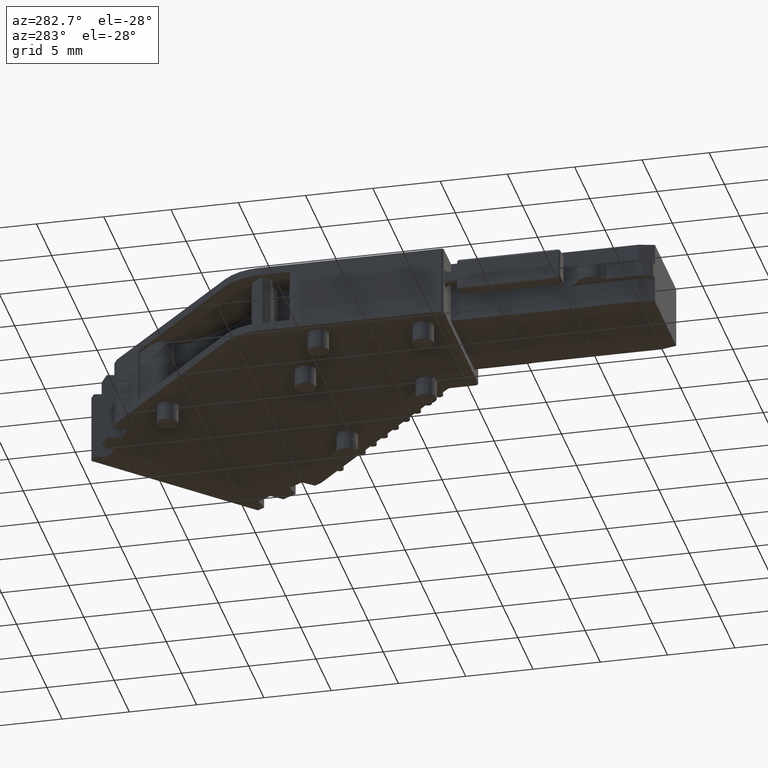
[diagram: clean part render]
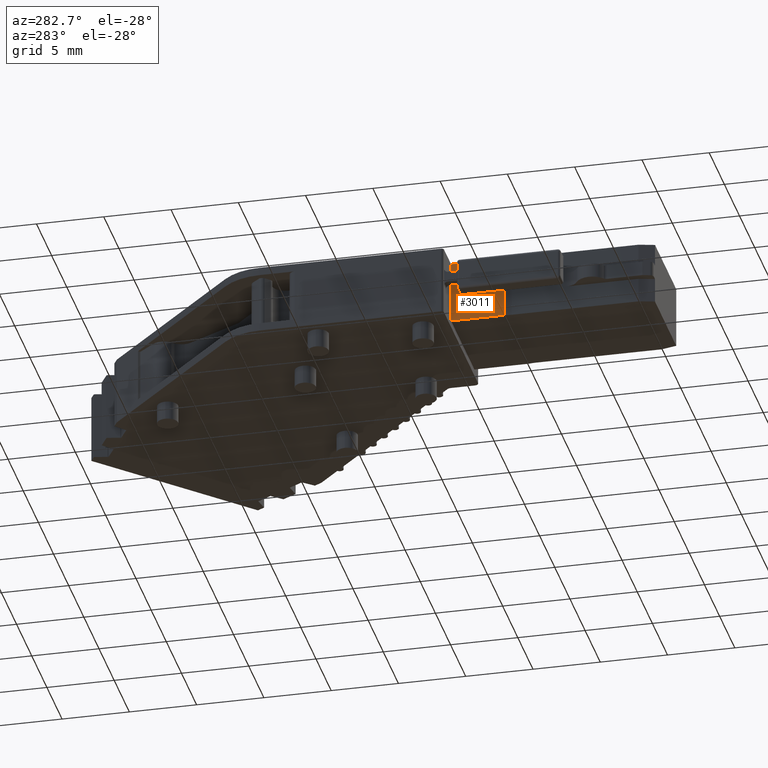
[diagram: same view with one face highlighted and labeled with its STEP entity id]
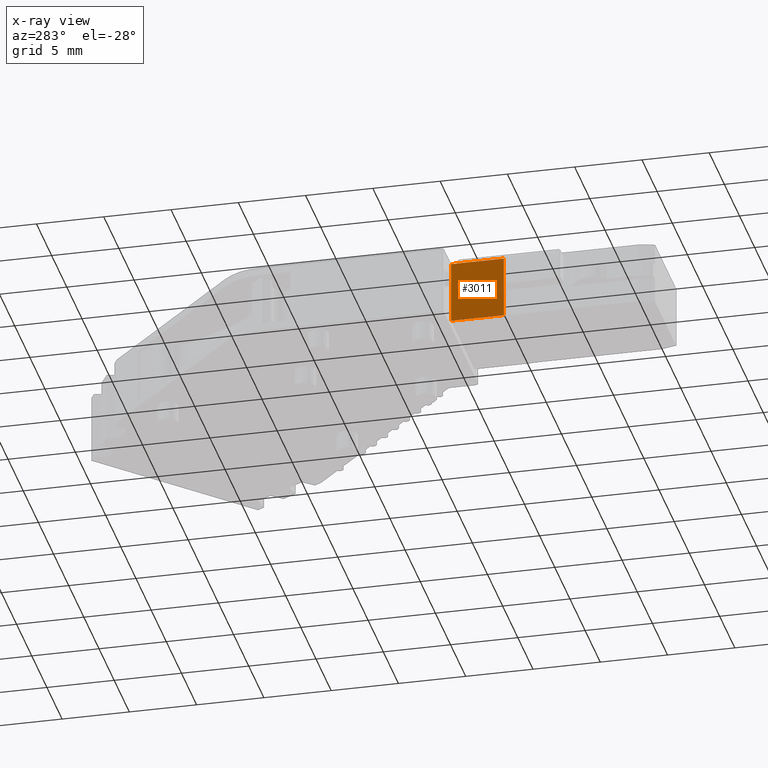
[diagram: x-ray of the same camera — body ghosted, the highlighted face saturated]
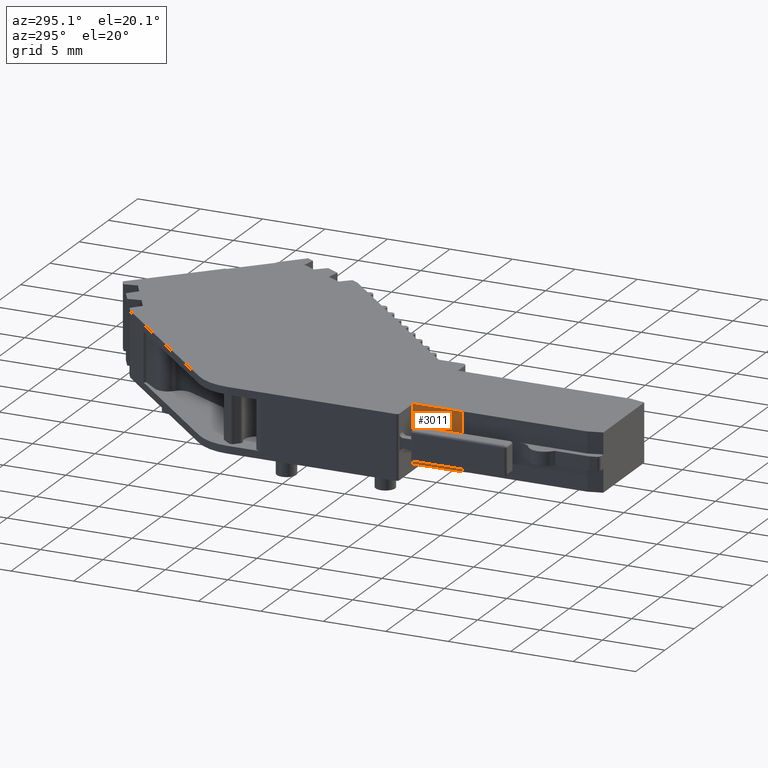
[diagram: same view with one face highlighted and labeled with its STEP entity id]
A machine part, auxiliary view. The second image highlights one B-rep face of the part: STEP entity #3011.
The next image is the same camera in x-ray: the body ghosted, the highlighted face saturated — about 0% of this face is hidden behind the body in this view.
A second angle (auxiliary view) of the same face is appended — the face is thin or edge-on in the first view.
In plain terms, the highlighted planar face has unit normal (-1, -0, 0).
Its self-contained STEP definition (entity closure, byte-faithful):
#207 = CARTESIAN_POINT ( 'NONE',  ( -3.846438410265570400, 11.15248975837830000, 0.5000000000000002200 ) ) ;
#411 = EDGE_CURVE ( 'NONE', #2591, #4702, #1422, .T. ) ;
#445 = LINE ( 'NONE', #5971, #4646 ) ;
#865 = CARTESIAN_POINT ( 'NONE',  ( -3.846438410265568700, 15.08098714324118100, 5.150000000000000400 ) ) ;
#1045 = PLANE ( 'NONE',  #5202 ) ;
#1065 = EDGE_CURVE ( 'NONE', #2385, #2591, #5059, .T. ) ;
#1379 = DIRECTION ( 'NONE',  ( 0.0000000000000000000, 0.0000000000000000000, 1.000000000000000000 ) ) ;
#1422 = LINE ( 'NONE', #2798, #2569 ) ;
#1625 = LINE ( 'NONE', #4680, #5354 ) ;
#1775 = DIRECTION ( 'NONE',  ( -0.0000000000000000000, -0.0000000000000000000, -1.000000000000000000 ) ) ;
#2264 = EDGE_CURVE ( 'NONE', #2410, #2385, #1625, .T. ) ;
#2385 = VERTEX_POINT ( 'NONE', #3780 ) ;
#2410 = VERTEX_POINT ( 'NONE', #865 ) ;
#2569 = VECTOR ( 'NONE', #1379, 1000.000000000000000 ) ;
#2591 = VERTEX_POINT ( 'NONE', #207 ) ;
#2798 = CARTESIAN_POINT ( 'NONE',  ( -3.846438410265568700, 11.15248975837826800, -3.800277769205023600 ) ) ;
#2803 = EDGE_LOOP ( 'NONE', ( #2985, #6077, #4435, #5413 ) ) ;
#2985 = ORIENTED_EDGE ( 'NONE', *, *, #2264, .T. ) ;
#3011 = ADVANCED_FACE ( 'NONE', ( #4266 ), #1045, .T. ) ;
#3405 = DIRECTION ( 'NONE',  ( 1.103935745675566000E-016, -1.000000000000000000, 0.0000000000000000000 ) ) ;
#3456 = VECTOR ( 'NONE', #3405, 1000.000000000000000 ) ;
#3704 = EDGE_CURVE ( 'NONE', #2410, #4702, #445, .T. ) ;
#3780 = CARTESIAN_POINT ( 'NONE',  ( -3.846438410265569100, 15.08098714324118100, 0.5000000000000003300 ) ) ;
#4266 = FACE_OUTER_BOUND ( 'NONE', #2803, .T. ) ;
#4419 = CARTESIAN_POINT ( 'NONE',  ( -3.846438410265570000, 11.15248975837822200, 5.150000000000001200 ) ) ;
#4435 = ORIENTED_EDGE ( 'NONE', *, *, #411, .T. ) ;
#4514 = CARTESIAN_POINT ( 'NONE',  ( -3.846438410265569100, 15.08098714324013500, -3.800277769205023600 ) ) ;
#4646 = VECTOR ( 'NONE', #5001, 1000.000000000000000 ) ;
#4680 = CARTESIAN_POINT ( 'NONE',  ( -3.846438410265569100, 15.08098714324118100, -3.800277769205023600 ) ) ;
#4702 = VERTEX_POINT ( 'NONE', #4419 ) ;
#5001 = DIRECTION ( 'NONE',  ( 0.0000000000000000000, -1.000000000000000000, -0.0000000000000000000 ) ) ;
#5059 = LINE ( 'NONE', #5801, #3456 ) ;
#5202 = AXIS2_PLACEMENT_3D ( 'NONE', #4514, #5519, #5932 ) ;
#5354 = VECTOR ( 'NONE', #1775, 1000.000000000000000 ) ;
#5413 = ORIENTED_EDGE ( 'NONE', *, *, #3704, .F. ) ;
#5519 = DIRECTION ( 'NONE',  ( -1.000000000000000000, -1.103935745675566000E-016, 0.0000000000000000000 ) ) ;
#5801 = CARTESIAN_POINT ( 'NONE',  ( -3.846438410265569100, 15.08098714324013500, 0.5000000000000004400 ) ) ;
#5932 = DIRECTION ( 'NONE',  ( 1.103935745675566000E-016, -1.000000000000000000, 0.0000000000000000000 ) ) ;
#5971 = CARTESIAN_POINT ( 'NONE',  ( -3.846438410265568700, 0.0000000000000000000, 5.150000000000000400 ) ) ;
#6077 = ORIENTED_EDGE ( 'NONE', *, *, #1065, .T. ) ;